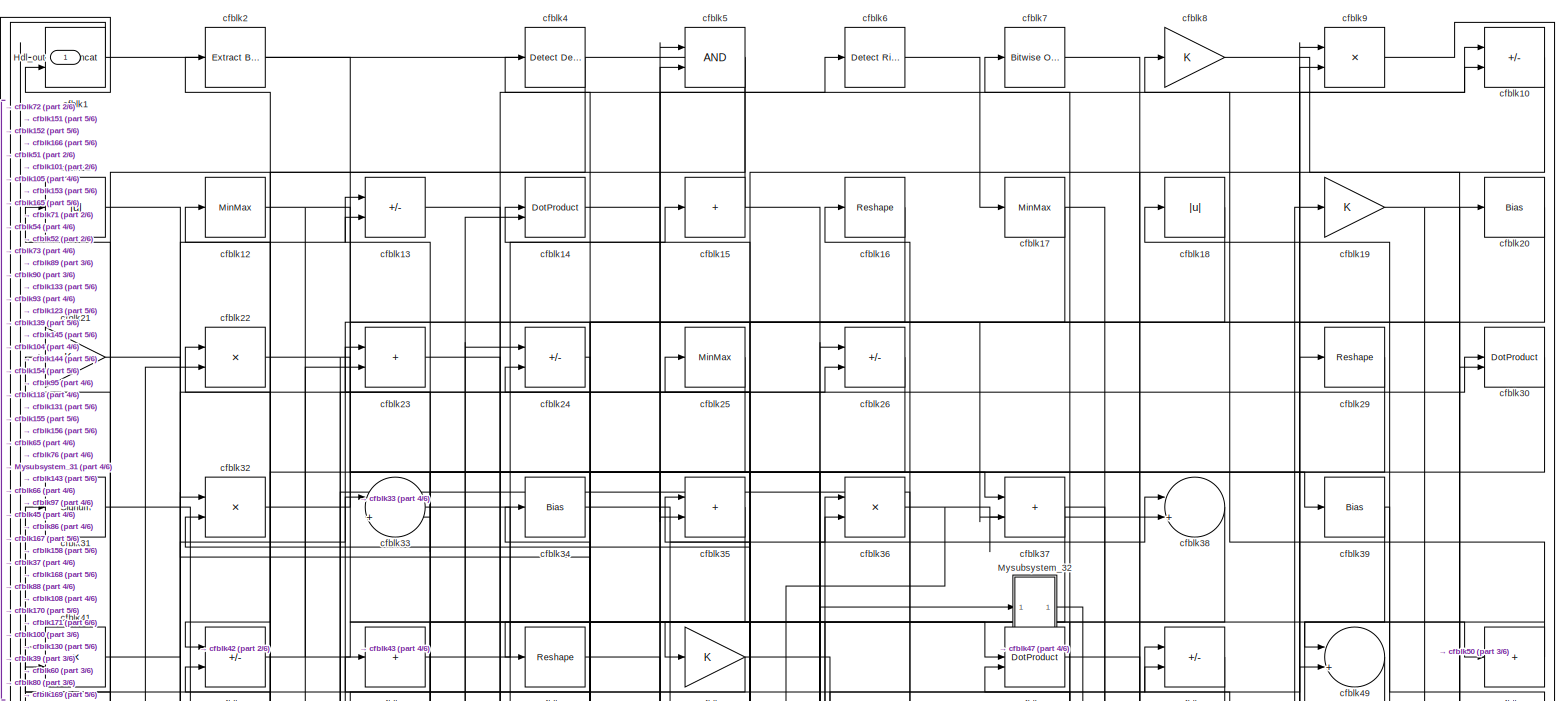
[diagram: root canvas - part 1/6, full width, top band]
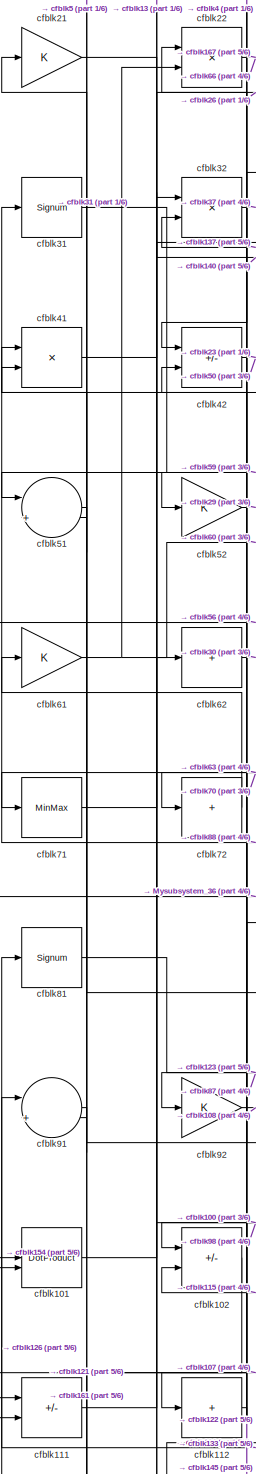
[diagram: root canvas - part 2/6, middle left region]
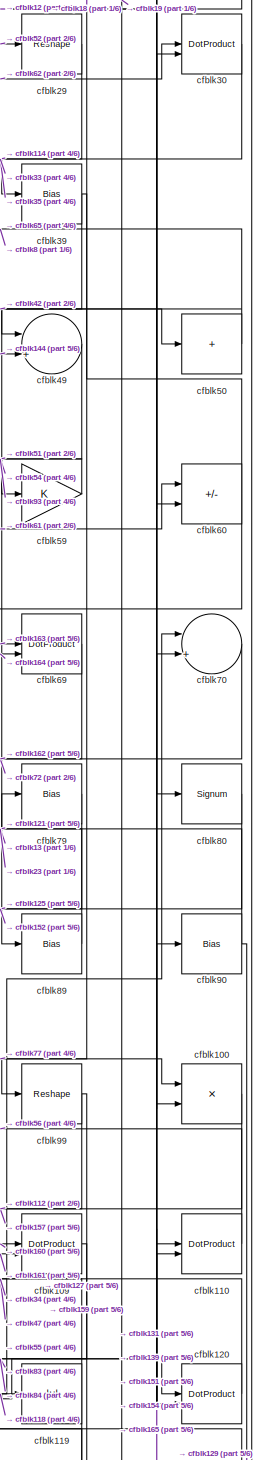
[diagram: root canvas - part 3/6, middle right region]
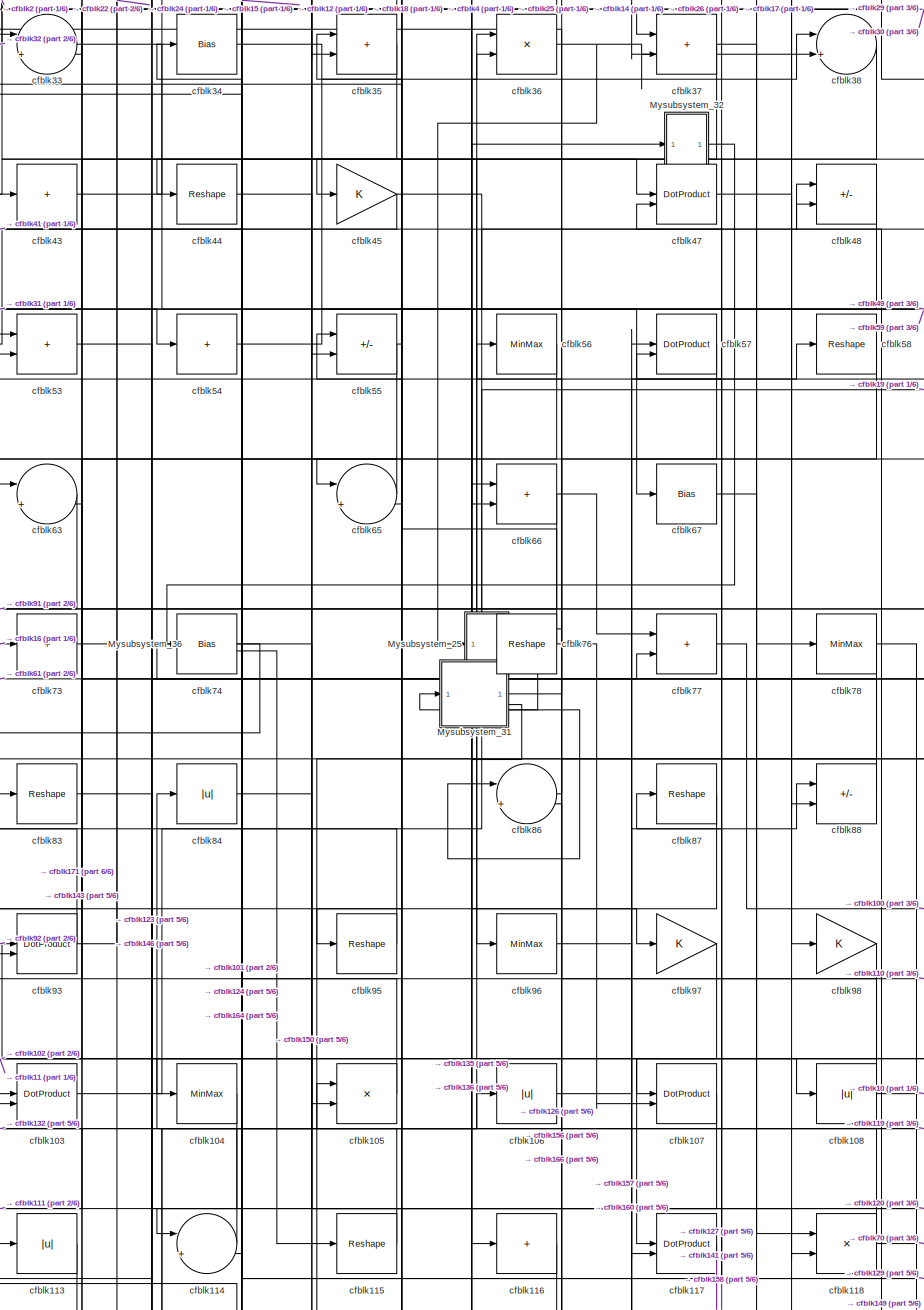
[diagram: root canvas - part 4/6, central region]
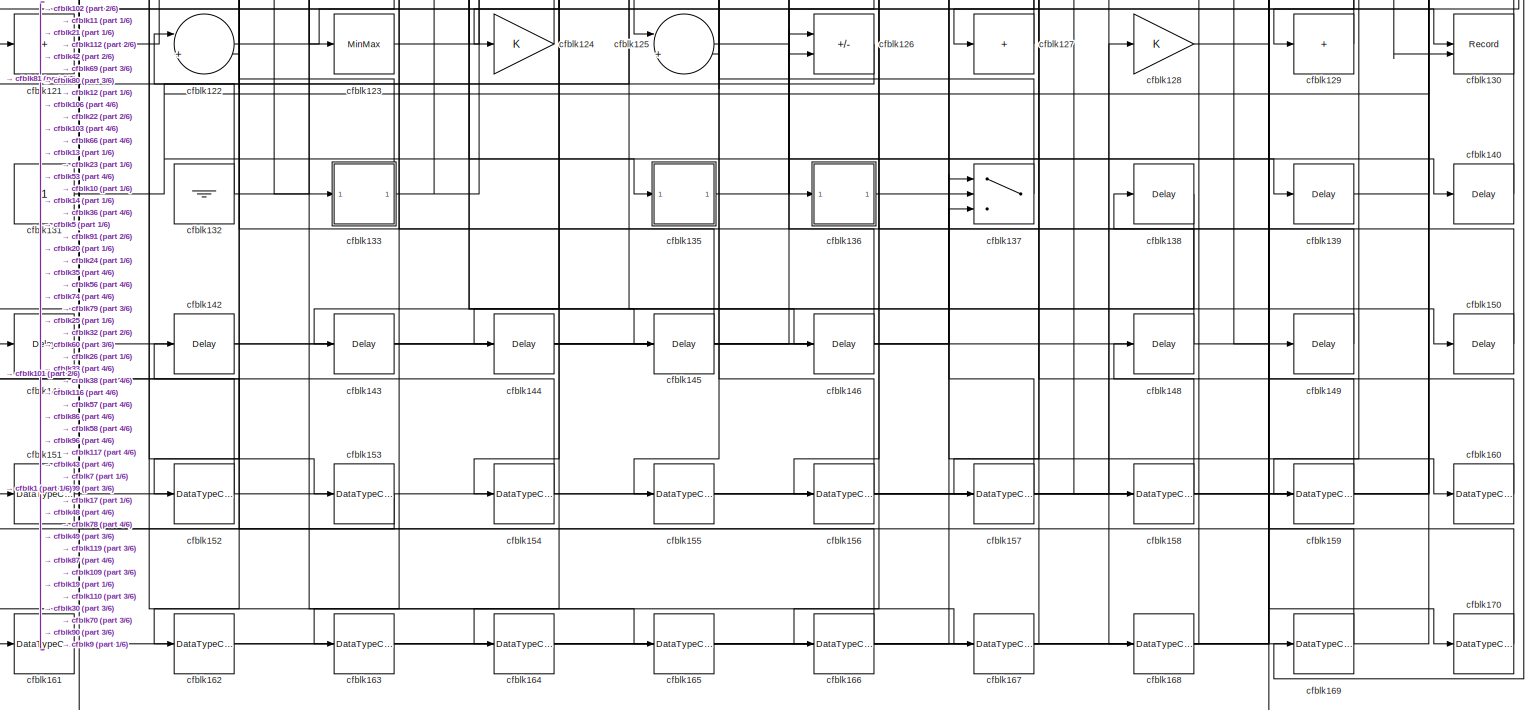
[diagram: root canvas - part 5/6, full width, bottom band]
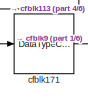
[diagram: root canvas - part 6/6, bottom left region]
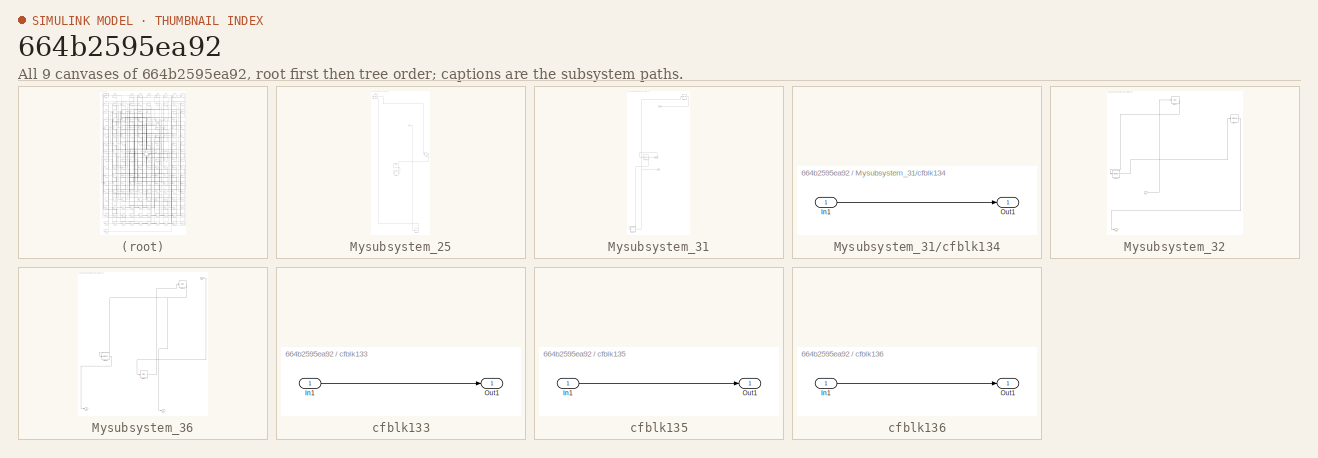
[diagram: thumbnail index - all 9 canvases of the model, root first then tree order]
MODEL slx_664b2595ea92
KIND model
CONFIG AbsTol = auto
CONFIG EnableMultiTasking = off
CONFIG FixedStep = auto
CONFIG MaxStep = auto
CONFIG MinStep = auto
CONFIG RelTol = 1e-3
CONFIG SampleTimeConstraint = Unconstrained
CONFIG SolverName = VariableStepAuto
CONFIG StartTime = 0.0
CONFIG StopTime = 10.0
BLOCK [Outport] Hdl_out
  OutDataTypeStr = uint8
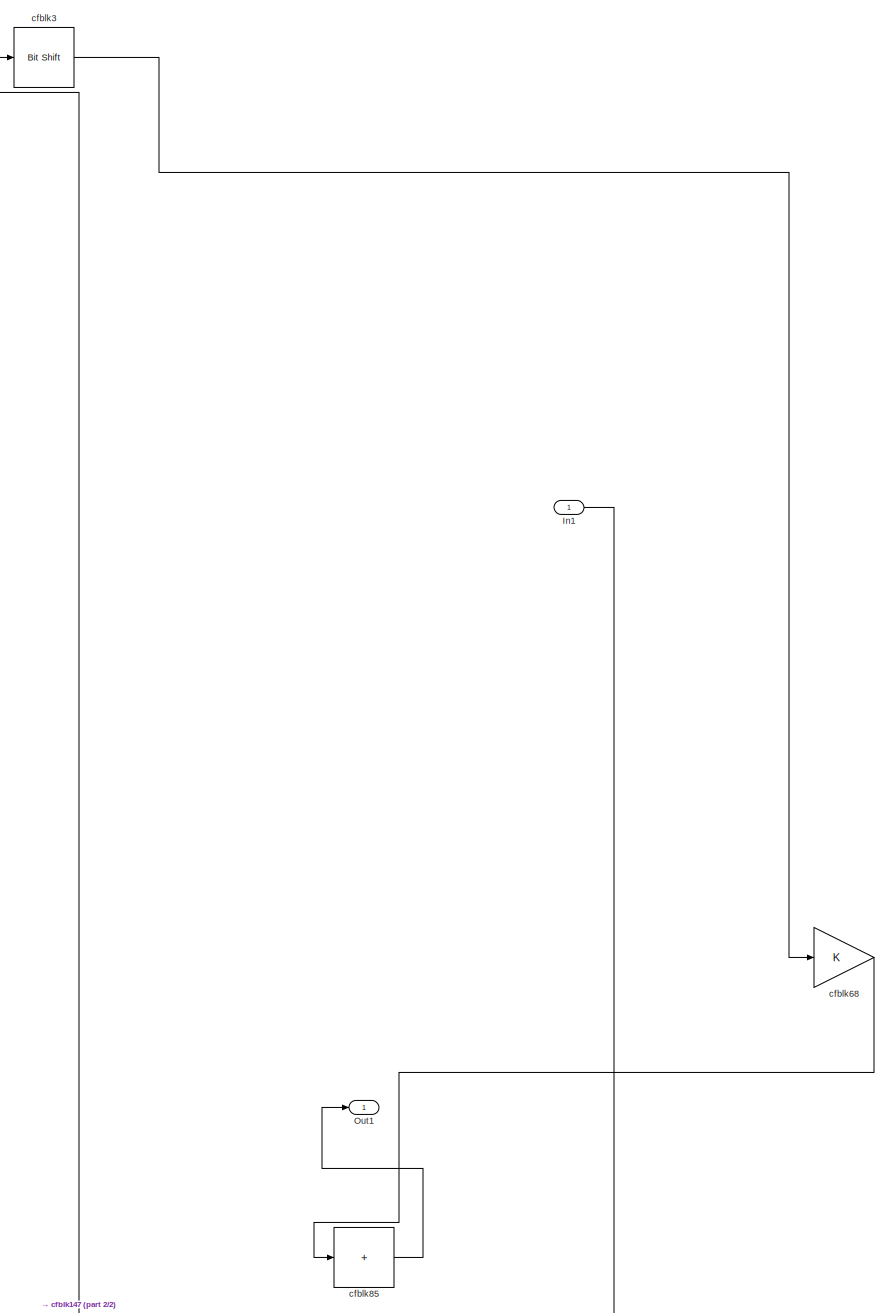
[diagram: Mysubsystem_25 - part 1/2, full width, top band]
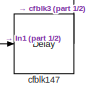
[diagram: Mysubsystem_25 - part 2/2, bottom right region]
BLOCK [SubSystem] Mysubsystem_25
  RTWFcnName = Mysubsystem_25
  RTWFcnNameOpts = User specified
  RTWFileNameOpts = Use function name
  RTWSystemCode = Reusable function
  TreatAsAtomicUnit = on
BLOCK [Inport] Mysubsystem_25/In1
BLOCK [Outport] Mysubsystem_25/Out1
BLOCK [Delay] Mysubsystem_25/cfblk147
  InputPortMap = u0
  SampleTime = 1
BLOCK [Reference] Mysubsystem_25/cfblk3  REF=hdlsllib/Logic and Bit
Operations/Bit Shift
  SourceBlock = hdlsllib/Logic and Bit\nOperations/Bit Shift
  SourceType = Bit Shift
BLOCK [Gain] Mysubsystem_25/cfblk68
BLOCK [Sum] Mysubsystem_25/cfblk85
  IconShape = rectangular
  Inputs = +
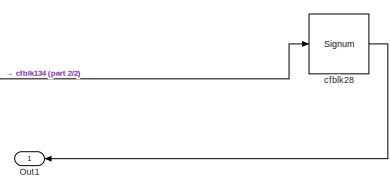
[diagram: Mysubsystem_31 - part 1/2, top right region]
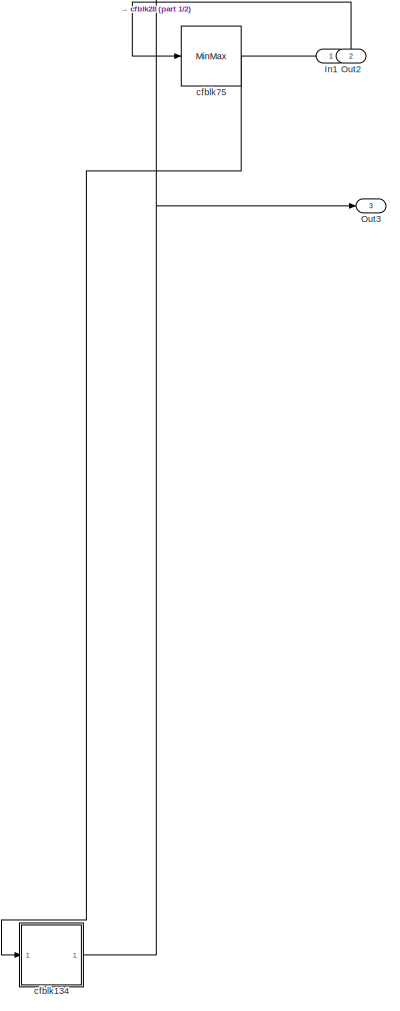
[diagram: Mysubsystem_31 - part 2/2, bottom left region]
BLOCK [SubSystem] Mysubsystem_31
  RTWFcnName = Mysubsystem_31
  RTWFcnNameOpts = User specified
  RTWFileNameOpts = Use function name
  RTWSystemCode = Reusable function
  TreatAsAtomicUnit = on
BLOCK [Inport] Mysubsystem_31/In1
BLOCK [Outport] Mysubsystem_31/Out1
BLOCK [Outport] Mysubsystem_31/Out2
  Port = 2
BLOCK [Outport] Mysubsystem_31/Out3
  Port = 3
BLOCK [SubSystem] Mysubsystem_31/cfblk134
  LibrarySourceBlock = hdlsllib/Ports &\nSubsystems/Subsystem
BLOCK [Inport] Mysubsystem_31/cfblk134/In1
BLOCK [Outport] Mysubsystem_31/cfblk134/Out1
BLOCK [Signum] Mysubsystem_31/cfblk28
BLOCK [MinMax] Mysubsystem_31/cfblk75
BLOCK [SubSystem] Mysubsystem_32
  RTWFcnName = Mysubsystem_32
  RTWFcnNameOpts = User specified
  RTWFileNameOpts = Use function name
  RTWSystemCode = Reusable function
  TreatAsAtomicUnit = on
BLOCK [Inport] Mysubsystem_32/In1
BLOCK [Outport] Mysubsystem_32/Out1
BLOCK [Bias] Mysubsystem_32/cfblk27
  Bias = 0.0
  SaturateOnIntegerOverflow = off
BLOCK [Signum] Mysubsystem_32/cfblk40
BLOCK [MinMax] Mysubsystem_32/cfblk64
BLOCK [SubSystem] Mysubsystem_36
  RTWFcnName = Mysubsystem_36
  RTWFcnNameOpts = User specified
  RTWFileNameOpts = Use function name
  RTWSystemCode = Reusable function
  TreatAsAtomicUnit = on
BLOCK [Inport] Mysubsystem_36/In1
BLOCK [Outport] Mysubsystem_36/Out1
BLOCK [Outport] Mysubsystem_36/Out2
  Port = 2
BLOCK [Bias] Mysubsystem_36/cfblk46
  Bias = 0.0
  SaturateOnIntegerOverflow = off
BLOCK [MinMax] Mysubsystem_36/cfblk82
BLOCK [Bias] Mysubsystem_36/cfblk94
  Bias = 0.0
  SaturateOnIntegerOverflow = off
BLOCK [Reference] cfblk1  REF=hdlsllib/Logic and Bit
Operations/Bit Concat
  SourceBlock = hdlsllib/Logic and Bit\nOperations/Bit Concat
  SourceType = Bit Concat
BLOCK [Sum] cfblk10
  IconShape = rectangular
  Inputs = +-
  OutDataTypeStr = uint8
BLOCK [Product] cfblk100
  Inputs = */
  OutDataTypeStr = uint8
  RndMeth = Zero
  SaturateOnIntegerOverflow = on
BLOCK [DotProduct] cfblk101
  OutDataTypeStr = uint8
BLOCK [Sum] cfblk102
  IconShape = rectangular
  Inputs = +-
  OutDataTypeStr = uint8
BLOCK [DotProduct] cfblk103
  OutDataTypeStr = uint8
BLOCK [MinMax] cfblk104
  OutDataTypeStr = uint8
BLOCK [Product] cfblk105
  Inputs = */
  OutDataTypeStr = uint8
  RndMeth = Zero
  SaturateOnIntegerOverflow = on
BLOCK [Abs] cfblk106
  OutDataTypeStr = uint8
  SaturateOnIntegerOverflow = off
BLOCK [DotProduct] cfblk107
  OutDataTypeStr = uint8
BLOCK [Abs] cfblk108
  OutDataTypeStr = uint8
  SaturateOnIntegerOverflow = off
BLOCK [DotProduct] cfblk109
  OutDataTypeStr = uint8
BLOCK [Abs] cfblk11
  OutDataTypeStr = uint8
  SaturateOnIntegerOverflow = off
BLOCK [DotProduct] cfblk110
  OutDataTypeStr = uint8
BLOCK [Sum] cfblk111
  IconShape = rectangular
  Inputs = +-
  OutDataTypeStr = uint8
BLOCK [Sum] cfblk112
  IconShape = rectangular
  Inputs = +
  OutDataTypeStr = uint8
BLOCK [Abs] cfblk113
  OutDataTypeStr = uint8
  SaturateOnIntegerOverflow = off
BLOCK [Sum] cfblk114
  Inputs = |++
  OutDataTypeStr = uint8
BLOCK [Reshape] cfblk115
BLOCK [Sum] cfblk116
  IconShape = rectangular
  Inputs = +
  OutDataTypeStr = uint8
BLOCK [DotProduct] cfblk117
  OutDataTypeStr = uint8
BLOCK [Product] cfblk118
  Inputs = */
  OutDataTypeStr = uint8
  RndMeth = Zero
  SaturateOnIntegerOverflow = on
BLOCK [Abs] cfblk119
  OutDataTypeStr = uint8
  SaturateOnIntegerOverflow = off
BLOCK [MinMax] cfblk12
  OutDataTypeStr = uint8
BLOCK [DotProduct] cfblk120
  OutDataTypeStr = uint8
BLOCK [Sum] cfblk121
  IconShape = rectangular
  Inputs = +
  OutDataTypeStr = uint8
BLOCK [Sum] cfblk122
  Inputs = |++
  OutDataTypeStr = uint8
BLOCK [MinMax] cfblk123
  OutDataTypeStr = uint8
BLOCK [Gain] cfblk124
  OutDataTypeStr = uint8
BLOCK [Sum] cfblk125
  Inputs = |++
  OutDataTypeStr = uint8
BLOCK [Sum] cfblk126
  IconShape = rectangular
  Inputs = +-
  OutDataTypeStr = uint8
BLOCK [Sum] cfblk127
  IconShape = rectangular
  Inputs = +
  OutDataTypeStr = uint8
BLOCK [Gain] cfblk128
  OutDataTypeStr = uint8
BLOCK [Sum] cfblk129
  IconShape = rectangular
  Inputs = +
  OutDataTypeStr = uint8
BLOCK [Sum] cfblk13
  IconShape = rectangular
  Inputs = +-
  OutDataTypeStr = uint8
BLOCK [Record] cfblk130
  CompatibilityTag = XY
  FileSettingsInternal = {"entries":[{"content":{"excelSettings":{"content":{},"type":"Streamout.ExcelSettings"}},"type":"Streamout.FileSettingStorage","uuid":""}],"packageUris":["http:\/\/schema.mathworks.com\/mf0\/streamout_blocks\/R2020a"],"version":"1.0"}
  Layout = [1 1]
  SignalsInternal = {"entries":[{"content":{"signals":[{"content":{"blockPath":[],"dimensions":[1],"domain":"","lineColor":"#a2142f","plots":[1],"port":1,"signalID":38150,"signalName":"cfblk122"},"type":"RecordBlkView.Signal","uuid":""},{"content":{"blockPath":[],"dimensions":[1],"domain":"","lineColor":"#139fff","plots":[1],"port":2,"signalID":38153,"signalName":"cfblk19"},"type":"RecordBlkView.Signal","uuid":""}]},...<+143ch>
  VisualizationBindings = {"xyplotplugin":{"info":[{"series":[{"bindingParametersList":[{"parameter":"X-Axis","signalID":38150,"signalName":"cfblk122"},{"parameter":"Y-Axis","signalID":38153,"signalName":"cfblk19"}],"seriesID":42550}],"subplotID":1}]}}
  st = -1
BLOCK [Constant] cfblk131
  OutDataTypeStr = uint8
  SampleTime = -1
BLOCK [Ground] cfblk132
BLOCK [SubSystem] cfblk133
  LibrarySourceBlock = hdlsllib/Ports &\nSubsystems/Subsystem
BLOCK [Inport] cfblk133/In1
BLOCK [Outport] cfblk133/Out1
BLOCK [SubSystem] cfblk135
  LibrarySourceBlock = hdlsllib/Ports &\nSubsystems/Subsystem
BLOCK [Inport] cfblk135/In1
BLOCK [Outport] cfblk135/Out1
BLOCK [SubSystem] cfblk136
  LibrarySourceBlock = hdlsllib/Ports &\nSubsystems/Subsystem
BLOCK [Inport] cfblk136/In1
BLOCK [Outport] cfblk136/Out1
BLOCK [Switch] cfblk137
  InputSameDT = off
  OutDataTypeStr = uint8
  SaturateOnIntegerOverflow = off
BLOCK [Delay] cfblk138
  InputPortMap = u0
  SampleTime = 1
BLOCK [Delay] cfblk139
  InputPortMap = u0
  SampleTime = 1
BLOCK [DotProduct] cfblk14
  OutDataTypeStr = uint8
BLOCK [Delay] cfblk140
  InputPortMap = u0
  SampleTime = 1
BLOCK [Delay] cfblk141
  InputPortMap = u0
  SampleTime = 1
BLOCK [Delay] cfblk142
  InputPortMap = u0
  SampleTime = 1
BLOCK [Delay] cfblk143
  InputPortMap = u0
  SampleTime = 1
BLOCK [Delay] cfblk144
  InputPortMap = u0
  SampleTime = 1
BLOCK [Delay] cfblk145
  InputPortMap = u0
  SampleTime = 1
BLOCK [Delay] cfblk146
  InputPortMap = u0
  SampleTime = 1
BLOCK [Delay] cfblk148
  InputPortMap = u0
  SampleTime = 1
BLOCK [Delay] cfblk149
  InputPortMap = u0
  SampleTime = 1
BLOCK [Sum] cfblk15
  IconShape = rectangular
  Inputs = +
  OutDataTypeStr = uint8
BLOCK [Delay] cfblk150
  InputPortMap = u0
  SampleTime = 1
BLOCK [DataTypeConversion] cfblk151
  OutDataTypeStr = uint8
  RndMeth = Floor
  SaturateOnIntegerOverflow = off
BLOCK [DataTypeConversion] cfblk152
  OutDataTypeStr = uint8
  RndMeth = Floor
  SaturateOnIntegerOverflow = off
BLOCK [DataTypeConversion] cfblk153
  OutDataTypeStr = uint8
  RndMeth = Floor
  SaturateOnIntegerOverflow = off
BLOCK [DataTypeConversion] cfblk154
  OutDataTypeStr = uint8
  RndMeth = Floor
  SaturateOnIntegerOverflow = off
BLOCK [DataTypeConversion] cfblk155
  OutDataTypeStr = uint8
  RndMeth = Floor
  SaturateOnIntegerOverflow = off
BLOCK [DataTypeConversion] cfblk156
  OutDataTypeStr = uint8
  RndMeth = Floor
  SaturateOnIntegerOverflow = off
BLOCK [DataTypeConversion] cfblk157
  OutDataTypeStr = uint8
  RndMeth = Floor
  SaturateOnIntegerOverflow = off
BLOCK [DataTypeConversion] cfblk158
  OutDataTypeStr = uint8
  RndMeth = Floor
  SaturateOnIntegerOverflow = off
BLOCK [DataTypeConversion] cfblk159
  OutDataTypeStr = uint8
  RndMeth = Floor
  SaturateOnIntegerOverflow = off
BLOCK [Reshape] cfblk16
BLOCK [DataTypeConversion] cfblk160
  OutDataTypeStr = uint8
  RndMeth = Floor
  SaturateOnIntegerOverflow = off
BLOCK [DataTypeConversion] cfblk161
  OutDataTypeStr = uint8
  RndMeth = Floor
  SaturateOnIntegerOverflow = off
BLOCK [DataTypeConversion] cfblk162
  OutDataTypeStr = uint8
  RndMeth = Floor
  SaturateOnIntegerOverflow = off
BLOCK [DataTypeConversion] cfblk163
  OutDataTypeStr = uint8
  RndMeth = Floor
  SaturateOnIntegerOverflow = off
BLOCK [DataTypeConversion] cfblk164
  OutDataTypeStr = uint8
  RndMeth = Floor
  SaturateOnIntegerOverflow = off
BLOCK [DataTypeConversion] cfblk165
  OutDataTypeStr = uint8
  RndMeth = Floor
  SaturateOnIntegerOverflow = off
BLOCK [DataTypeConversion] cfblk166
  OutDataTypeStr = uint8
  RndMeth = Floor
  SaturateOnIntegerOverflow = off
BLOCK [DataTypeConversion] cfblk167
  OutDataTypeStr = uint8
  RndMeth = Floor
  SaturateOnIntegerOverflow = off
BLOCK [DataTypeConversion] cfblk168
  OutDataTypeStr = uint8
  RndMeth = Floor
  SaturateOnIntegerOverflow = off
BLOCK [DataTypeConversion] cfblk169
  OutDataTypeStr = uint8
  RndMeth = Floor
  SaturateOnIntegerOverflow = off
BLOCK [MinMax] cfblk17
  OutDataTypeStr = uint8
BLOCK [DataTypeConversion] cfblk170
  OutDataTypeStr = uint8
  RndMeth = Floor
  SaturateOnIntegerOverflow = off
BLOCK [DataTypeConversion] cfblk171
  OutDataTypeStr = uint8
  RndMeth = Floor
  SaturateOnIntegerOverflow = off
BLOCK [Abs] cfblk18
  OutDataTypeStr = uint8
  SaturateOnIntegerOverflow = off
BLOCK [Gain] cfblk19
  OutDataTypeStr = uint8
BLOCK [Reference] cfblk2  REF=simulink/Logic and Bit
Operations/Extract Bits
  LibrarySourceBlock = hdlsllib/Logic and Bit\nOperations/Extract Bits
  SourceBlock = simulink/Logic and Bit\nOperations/Extract Bits
  SourceType = Extract Bits
BLOCK [Bias] cfblk20
  Bias = 0.0
  SaturateOnIntegerOverflow = off
BLOCK [Gain] cfblk21
  OutDataTypeStr = uint8
BLOCK [Product] cfblk22
  Inputs = */
  OutDataTypeStr = uint8
  RndMeth = Zero
  SaturateOnIntegerOverflow = on
BLOCK [Sum] cfblk23
  IconShape = rectangular
  OutDataTypeStr = uint8
BLOCK [Sum] cfblk24
  IconShape = rectangular
  Inputs = +-
  OutDataTypeStr = uint8
BLOCK [MinMax] cfblk25
  OutDataTypeStr = uint8
BLOCK [Sum] cfblk26
  IconShape = rectangular
  Inputs = +-
  OutDataTypeStr = uint8
BLOCK [Reshape] cfblk29
BLOCK [DotProduct] cfblk30
  OutDataTypeStr = uint8
BLOCK [Signum] cfblk31
BLOCK [Product] cfblk32
  Inputs = */
  OutDataTypeStr = uint8
  RndMeth = Zero
  SaturateOnIntegerOverflow = on
BLOCK [Sum] cfblk33
  Inputs = |++
  OutDataTypeStr = uint8
BLOCK [Bias] cfblk34
  Bias = 0.0
  SaturateOnIntegerOverflow = off
BLOCK [Sum] cfblk35
  IconShape = rectangular
  OutDataTypeStr = uint8
BLOCK [Product] cfblk36
  Inputs = */
  OutDataTypeStr = uint8
  RndMeth = Zero
  SaturateOnIntegerOverflow = on
BLOCK [Sum] cfblk37
  IconShape = rectangular
  OutDataTypeStr = uint8
BLOCK [Sum] cfblk38
  Inputs = |++
  OutDataTypeStr = uint8
BLOCK [Bias] cfblk39
  Bias = 0.0
  SaturateOnIntegerOverflow = off
BLOCK [Reference] cfblk4  REF=simulink/Logic and Bit
Operations/Detect
Decrease
  LibrarySourceBlock = hdlsllib/Logic and Bit\nOperations/Detect\nDecrease
  SourceBlock = simulink/Logic and Bit\nOperations/Detect\nDecrease
  SourceType = Detect Decrease
BLOCK [Product] cfblk41
  Inputs = */
  OutDataTypeStr = uint8
  RndMeth = Zero
  SaturateOnIntegerOverflow = on
BLOCK [Sum] cfblk42
  IconShape = rectangular
  Inputs = +-
  OutDataTypeStr = uint8
BLOCK [Sum] cfblk43
  IconShape = rectangular
  Inputs = +
  OutDataTypeStr = uint8
BLOCK [Reshape] cfblk44
BLOCK [Gain] cfblk45
  OutDataTypeStr = uint8
BLOCK [DotProduct] cfblk47
  OutDataTypeStr = uint8
BLOCK [Sum] cfblk48
  IconShape = rectangular
  Inputs = +-
  OutDataTypeStr = uint8
BLOCK [Sum] cfblk49
  Inputs = |++
  OutDataTypeStr = uint8
BLOCK [Logic] cfblk5
  AllPortsSameDT = off
  OutDataTypeStr = boolean
BLOCK [Sum] cfblk50
  IconShape = rectangular
  Inputs = +
  OutDataTypeStr = uint8
BLOCK [Sum] cfblk51
  Inputs = |++
  OutDataTypeStr = uint8
BLOCK [Gain] cfblk52
  OutDataTypeStr = uint8
BLOCK [Sum] cfblk53
  IconShape = rectangular
  OutDataTypeStr = uint8
BLOCK [Sum] cfblk54
  IconShape = rectangular
  Inputs = +
  OutDataTypeStr = uint8
BLOCK [Sum] cfblk55
  IconShape = rectangular
  Inputs = +-
  OutDataTypeStr = uint8
BLOCK [MinMax] cfblk56
  OutDataTypeStr = uint8
BLOCK [DotProduct] cfblk57
  OutDataTypeStr = uint8
BLOCK [Reshape] cfblk58
BLOCK [Gain] cfblk59
  OutDataTypeStr = uint8
BLOCK [Reference] cfblk6  REF=hdlsllib/Logic and Bit
Operations/Detect Rise
Nonnegative
  SourceBlock = hdlsllib/Logic and Bit\nOperations/Detect Rise\nNonnegative
  SourceType = Detect Rise Nonnegative
BLOCK [Sum] cfblk60
  IconShape = rectangular
  Inputs = +-
  OutDataTypeStr = uint8
BLOCK [Gain] cfblk61
  OutDataTypeStr = uint8
BLOCK [Sum] cfblk62
  IconShape = rectangular
  Inputs = +
  OutDataTypeStr = uint8
BLOCK [Sum] cfblk63
  Inputs = |++
  OutDataTypeStr = uint8
BLOCK [Sum] cfblk65
  Inputs = |++
  OutDataTypeStr = uint8
BLOCK [Sum] cfblk66
  IconShape = rectangular
  OutDataTypeStr = uint8
BLOCK [Bias] cfblk67
  Bias = 0.0
  SaturateOnIntegerOverflow = off
BLOCK [DotProduct] cfblk69
  OutDataTypeStr = uint8
BLOCK [Reference] cfblk7  REF=simulink/Logic and Bit
Operations/Bitwise
Operator
  LibrarySourceBlock = hdlsllib/Logic and Bit\nOperations/Bitwise\nOperator
  SourceBlock = simulink/Logic and Bit\nOperations/Bitwise\nOperator
  SourceType = Bitwise Operator
BLOCK [Sum] cfblk70
  Inputs = |++
  OutDataTypeStr = uint8
BLOCK [MinMax] cfblk71
  OutDataTypeStr = uint8
BLOCK [Sum] cfblk72
  IconShape = rectangular
  Inputs = +
  OutDataTypeStr = uint8
BLOCK [Sum] cfblk73
  IconShape = rectangular
  Inputs = +
  OutDataTypeStr = uint8
BLOCK [Bias] cfblk74
  Bias = 0.0
  SaturateOnIntegerOverflow = off
BLOCK [Reshape] cfblk76
BLOCK [Sum] cfblk77
  IconShape = rectangular
  OutDataTypeStr = uint8
BLOCK [MinMax] cfblk78
  OutDataTypeStr = uint8
BLOCK [Bias] cfblk79
  Bias = 0.0
  SaturateOnIntegerOverflow = off
BLOCK [Gain] cfblk8
  OutDataTypeStr = uint8
BLOCK [Signum] cfblk80
BLOCK [Signum] cfblk81
BLOCK [Reshape] cfblk83
BLOCK [Abs] cfblk84
  OutDataTypeStr = uint8
  SaturateOnIntegerOverflow = off
BLOCK [Sum] cfblk86
  Inputs = |++
  OutDataTypeStr = uint8
BLOCK [Reshape] cfblk87
BLOCK [Sum] cfblk88
  IconShape = rectangular
  Inputs = +-
  OutDataTypeStr = uint8
BLOCK [Bias] cfblk89
  Bias = 0.0
  SaturateOnIntegerOverflow = off
BLOCK [Product] cfblk9
  Inputs = */
  OutDataTypeStr = uint8
  RndMeth = Zero
  SaturateOnIntegerOverflow = on
BLOCK [Bias] cfblk90
  Bias = 0.0
  SaturateOnIntegerOverflow = off
BLOCK [Sum] cfblk91
  Inputs = |++
  OutDataTypeStr = uint8
BLOCK [Gain] cfblk92
  OutDataTypeStr = uint8
BLOCK [DotProduct] cfblk93
  OutDataTypeStr = uint8
BLOCK [Reshape] cfblk95
BLOCK [MinMax] cfblk96
  OutDataTypeStr = uint8
BLOCK [Gain] cfblk97
  OutDataTypeStr = uint8
BLOCK [Gain] cfblk98
  OutDataTypeStr = uint8
BLOCK [Reshape] cfblk99
LINE Mysubsystem_25/In1:1 -> Mysubsystem_25/cfblk147:1
LINE Mysubsystem_25/cfblk147:1 -> Mysubsystem_25/cfblk3:1
LINE Mysubsystem_25/cfblk3:1 -> Mysubsystem_25/cfblk68:1
LINE Mysubsystem_25/cfblk68:1 -> Mysubsystem_25/cfblk85:1
LINE Mysubsystem_25/cfblk85:1 -> Mysubsystem_25/Out1:1
LINE Mysubsystem_25:1 -> Mysubsystem_31:1
LINE Mysubsystem_31/In1:1 -> Mysubsystem_31/cfblk75:1
LINE Mysubsystem_31/cfblk134/In1:1 -> Mysubsystem_31/cfblk134/Out1:1
NET Mysubsystem_31/cfblk134:1 -> Mysubsystem_31/Out3:1, Mysubsystem_31/cfblk28:1
LINE Mysubsystem_31/cfblk28:1 -> Mysubsystem_31/Out1:1
NET Mysubsystem_31/cfblk75:1 -> Mysubsystem_31/Out2:1, Mysubsystem_31/cfblk134:1
NET Mysubsystem_31:1 -> cfblk53:2, cfblk76:1
NET Mysubsystem_31:2 -> Mysubsystem_32:1, cfblk19:1
LINE Mysubsystem_31:3 -> cfblk86:1
LINE Mysubsystem_32/In1:1 -> Mysubsystem_32/cfblk27:1
LINE Mysubsystem_32/cfblk27:1 -> Mysubsystem_32/cfblk64:1
LINE Mysubsystem_32/cfblk40:1 -> Mysubsystem_32/Out1:1
LINE Mysubsystem_32/cfblk64:1 -> Mysubsystem_32/cfblk40:1
LINE Mysubsystem_32:1 -> Mysubsystem_36:1
LINE Mysubsystem_36/In1:1 -> Mysubsystem_36/cfblk94:1
NET Mysubsystem_36/cfblk46:1 -> Mysubsystem_36/Out2:1, Mysubsystem_36/cfblk82:1
LINE Mysubsystem_36/cfblk82:1 -> Mysubsystem_36/Out1:1
LINE Mysubsystem_36/cfblk94:1 -> Mysubsystem_36/cfblk46:1
LINE Mysubsystem_36:1 -> cfblk111:1
LINE Mysubsystem_36:2 -> cfblk115:1
LINE cfblk100:1 -> cfblk112:1
LINE cfblk101:1 -> cfblk26:2
LINE cfblk102:1 -> cfblk161:1
LINE cfblk103:1 -> cfblk48:1
LINE cfblk104:1 -> cfblk114:1
NET cfblk105:1 -> cfblk2:1, cfblk41:1, cfblk63:2
LINE cfblk106:1 -> cfblk88:1
LINE cfblk107:1 -> cfblk111:2
NET cfblk108:1 -> cfblk10:2, cfblk74:1
LINE cfblk109:1 -> cfblk159:1
NET cfblk10:1 -> cfblk45:1, cfblk65:2, cfblk88:2
LINE cfblk110:1 -> cfblk56:1
LINE cfblk111:1 -> cfblk62:1
LINE cfblk112:1 -> cfblk122:2
LINE cfblk113:1 -> cfblk171:1
LINE cfblk114:1 -> cfblk84:1
LINE cfblk115:1 -> cfblk102:2
LINE cfblk116:1 -> cfblk126:2
LINE cfblk117:1 -> cfblk141:1
NET cfblk118:1 -> cfblk105:1, cfblk70:1
NET cfblk119:1 -> cfblk127:1, cfblk34:1, cfblk47:2
NET cfblk11:1 -> cfblk105:2, cfblk153:1
LINE cfblk120:1 -> cfblk55:1
LINE cfblk121:1 -> cfblk79:1
LINE cfblk122:1 -> cfblk130:1
NET cfblk123:1 -> cfblk10:1, cfblk36:1
LINE cfblk124:1 -> cfblk91:1
LINE cfblk125:1 -> cfblk140:1
LINE cfblk126:1 -> cfblk81:1
LINE cfblk127:1 -> cfblk43:1
LINE cfblk128:1 -> cfblk170:1
LINE cfblk129:1 -> cfblk87:1
NET cfblk12:1 -> cfblk133:1, cfblk39:1, cfblk60:2
NET cfblk131:1 -> cfblk135:1, cfblk30:2, cfblk5:2
NET cfblk132:1 -> cfblk106:1, cfblk122:1
LINE cfblk133/In1:1 -> cfblk133/Out1:1
NET cfblk133:1 -> cfblk14:2, cfblk22:1, cfblk5:1
LINE cfblk135/In1:1 -> cfblk135/Out1:1
LINE cfblk135:1 -> cfblk38:1
LINE cfblk136/In1:1 -> cfblk136/Out1:1
LINE cfblk136:1 -> cfblk58:1
LINE cfblk137:1 -> cfblk32:2
LINE cfblk138:1 -> cfblk163:1
LINE cfblk139:1 -> cfblk70:2
LINE cfblk13:1 -> cfblk139:1
LINE cfblk140:1 -> cfblk32:1
LINE cfblk141:1 -> cfblk137:2
LINE cfblk142:1 -> cfblk137:1
LINE cfblk143:1 -> cfblk26:1
LINE cfblk144:1 -> cfblk49:2
LINE cfblk145:1 -> cfblk42:2
LINE cfblk146:1 -> cfblk103:2
LINE cfblk148:1 -> cfblk126:1
LINE cfblk149:1 -> cfblk86:2
NET cfblk14:1 -> cfblk118:2, cfblk6:1
LINE cfblk150:1 -> cfblk48:2
LINE cfblk151:1 -> cfblk110:2
LINE cfblk152:1 -> cfblk1:1
LINE cfblk153:1 -> cfblk1:2
NET cfblk154:1 -> cfblk101:1, cfblk90:1
LINE cfblk155:1 -> cfblk20:1
NET cfblk156:1 -> cfblk128:1, cfblk25:1
LINE cfblk157:1 -> cfblk57:1
LINE cfblk158:1 -> cfblk57:2
LINE cfblk159:1 -> cfblk138:1
NET cfblk15:1 -> Hdl_out:1, cfblk97:1
LINE cfblk160:1 -> cfblk109:1
LINE cfblk161:1 -> cfblk109:2
LINE cfblk162:1 -> cfblk137:3
LINE cfblk163:1 -> cfblk69:1
LINE cfblk164:1 -> cfblk69:2
LINE cfblk165:1 -> cfblk110:1
LINE cfblk166:1 -> cfblk21:1
LINE cfblk167:1 -> cfblk7:1
LINE cfblk168:1 -> cfblk148:1
LINE cfblk169:1 -> cfblk142:1
LINE cfblk16:1 -> cfblk73:1
LINE cfblk170:1 -> cfblk9:1
LINE cfblk171:1 -> cfblk9:2
NET cfblk17:1 -> cfblk155:1, cfblk158:1, cfblk37:2
LINE cfblk18:1 -> cfblk104:1
NET cfblk19:1 -> cfblk100:2, cfblk130:2
LINE cfblk1:1 -> cfblk151:1
LINE cfblk20:1 -> cfblk154:1
LINE cfblk21:1 -> cfblk165:1
NET cfblk22:1 -> cfblk167:1, cfblk66:1
LINE cfblk23:1 -> cfblk145:1
LINE cfblk24:1 -> cfblk144:1
LINE cfblk25:1 -> cfblk93:1
NET cfblk26:1 -> cfblk52:1, cfblk66:2
NET cfblk29:1 -> cfblk114:2, cfblk35:2
LINE cfblk2:1 -> cfblk47:1
NET cfblk30:1 -> cfblk33:2, cfblk65:1
LINE cfblk31:1 -> cfblk54:1
LINE cfblk32:1 -> cfblk37:1
LINE cfblk33:1 -> cfblk136:1
NET cfblk34:1 -> cfblk116:1, cfblk36:2
LINE cfblk35:1 -> cfblk124:1
NET cfblk36:1 -> Mysubsystem_25:1, cfblk38:2
NET cfblk37:1 -> cfblk118:1, cfblk44:1, cfblk96:1
NET cfblk38:1 -> cfblk107:1, cfblk53:1
NET cfblk39:1 -> cfblk89:1, cfblk99:1
LINE cfblk41:1 -> cfblk33:1
NET cfblk42:1 -> cfblk23:2, cfblk50:1
LINE cfblk43:1 -> cfblk15:1
LINE cfblk44:1 -> cfblk55:2
NET cfblk45:1 -> cfblk41:2, cfblk67:1
LINE cfblk47:1 -> cfblk98:1
LINE cfblk48:1 -> cfblk95:1
LINE cfblk49:1 -> cfblk93:2
LINE cfblk4:1 -> cfblk42:1
NET cfblk50:1 -> cfblk49:1, cfblk8:1
LINE cfblk51:1 -> cfblk71:1
LINE cfblk52:1 -> cfblk29:1
LINE cfblk53:1 -> cfblk146:1
LINE cfblk54:1 -> cfblk59:1
NET cfblk55:1 -> cfblk113:1, cfblk35:1
NET cfblk56:1 -> cfblk101:2, cfblk164:1
LINE cfblk57:1 -> cfblk156:1
LINE cfblk58:1 -> cfblk117:2
LINE cfblk59:1 -> cfblk51:1
LINE cfblk5:1 -> cfblk51:2
NET cfblk60:1 -> cfblk125:2, cfblk18:1
NET cfblk61:1 -> cfblk22:2, cfblk60:1
LINE cfblk62:1 -> cfblk30:1
LINE cfblk63:1 -> cfblk91:2
LINE cfblk65:1 -> cfblk63:1
NET cfblk66:1 -> cfblk143:1, cfblk77:1
LINE cfblk67:1 -> cfblk78:1
LINE cfblk69:1 -> cfblk162:1
LINE cfblk6:1 -> cfblk17:1
LINE cfblk70:1 -> cfblk72:1
LINE cfblk71:1 -> cfblk13:1
LINE cfblk72:1 -> cfblk31:1
NET cfblk73:1 -> cfblk103:1, cfblk77:2
LINE cfblk74:1 -> cfblk150:1
NET cfblk76:1 -> cfblk107:2, cfblk14:1, cfblk24:2
LINE cfblk77:1 -> cfblk100:1
NET cfblk78:1 -> cfblk149:1, cfblk166:1
LINE cfblk79:1 -> cfblk125:1
LINE cfblk7:1 -> cfblk168:1
LINE cfblk80:1 -> cfblk152:1
LINE cfblk81:1 -> cfblk123:1
LINE cfblk83:1 -> cfblk120:1
LINE cfblk84:1 -> cfblk120:2
LINE cfblk86:1 -> cfblk16:1
LINE cfblk87:1 -> cfblk92:1
LINE cfblk88:1 -> cfblk61:1
LINE cfblk89:1 -> cfblk23:1
LINE cfblk8:1 -> cfblk80:1
NET cfblk90:1 -> cfblk129:1, cfblk13:2
LINE cfblk91:1 -> cfblk121:1
LINE cfblk92:1 -> cfblk108:1
NET cfblk93:1 -> cfblk24:1, cfblk83:1
NET cfblk95:1 -> cfblk11:1, cfblk12:1, cfblk4:1
LINE cfblk96:1 -> cfblk160:1
LINE cfblk97:1 -> cfblk117:1
LINE cfblk98:1 -> cfblk102:1
NET cfblk99:1 -> cfblk119:1, cfblk157:1
LINE cfblk9:1 -> cfblk169:1
note: NET lines group one-source signal fan-out (src -> all destinations, sorted); 1:1 wires keep LINE
